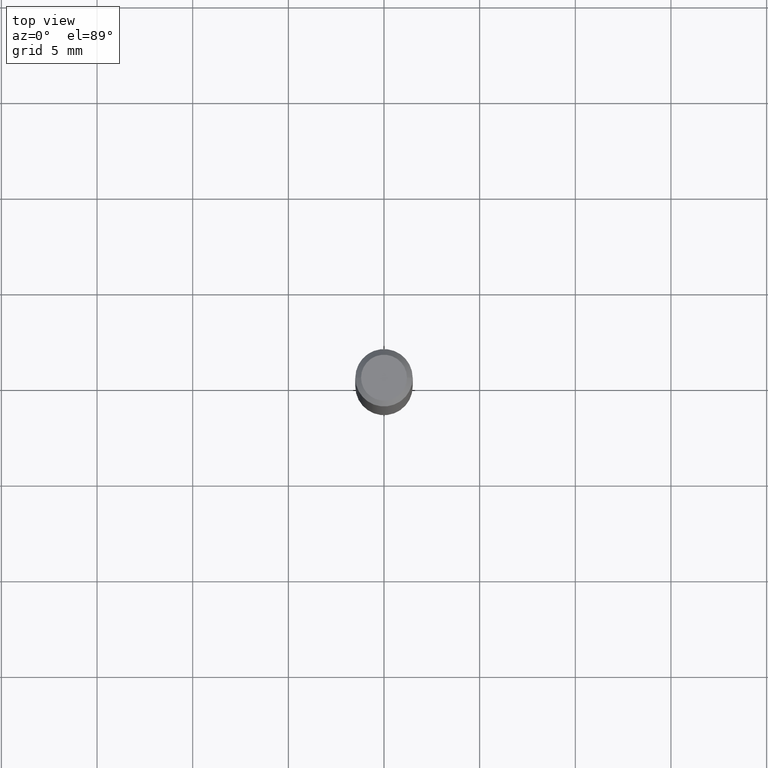
[diagram: clean part render]
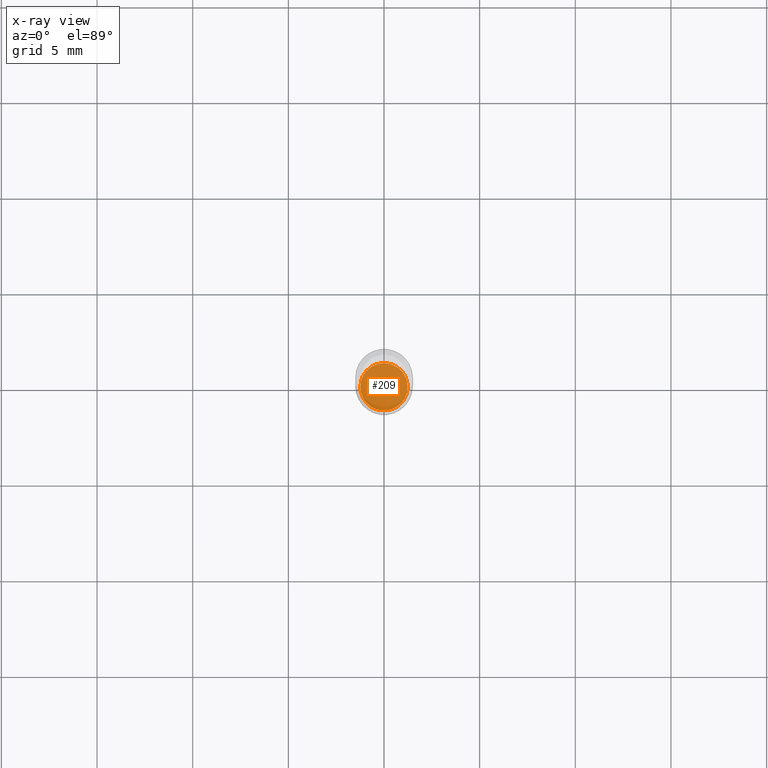
[diagram: x-ray — body ghosted, one internal face saturated and labeled with its STEP entity id]
A machine part, top view, then the same camera in x-ray: the body is ghosted and one INTERNAL B-rep face — a face not visible from any outside direction — is saturated and labeled: STEP entity #209.
In plain terms, the highlighted planar face has unit normal (-0, 0, 1).
Its self-contained STEP definition (entity closure, byte-faithful):
#1 = CARTESIAN_POINT ( 'NONE',  ( 2.676565608369631794E-29, -3.821426325363822773E-15, -1.094499999999999806 ) ) ;
#4 = DIRECTION ( 'NONE',  ( 1.000000000000000000, -6.982962677686261189E-15, 0.000000000000000000 ) ) ;
#24 = CARTESIAN_POINT ( 'NONE',  ( 0.04870000000000000023, -4.161496607767143501E-15, -1.094499999999999806 ) ) ;
#46 = DIRECTION ( 'NONE',  ( -2.438088387897960049E-29, 3.491481338843145188E-15, 1.000000000000000000 ) ) ;
#69 = AXIS2_PLACEMENT_3D ( 'NONE', #1, #202, #4 ) ;
#70 = EDGE_LOOP ( 'NONE', ( #428, #331 ) ) ;
#80 = EDGE_CURVE ( 'NONE', #219, #484, #102, .T. ) ;
#102 = CIRCLE ( 'NONE', #69, 0.04870000000000000023 ) ;
#136 = DIRECTION ( 'NONE',  ( 1.000000000000000000, -6.982962677686265922E-15, 4.876176775795935793E-29 ) ) ;
#161 = EDGE_CURVE ( 'NONE', #484, #219, #253, .T. ) ;
#202 = DIRECTION ( 'NONE',  ( -2.445468806185136597E-29, 3.491481338843145583E-15, 1.000000000000000000 ) ) ;
#209 = ADVANCED_FACE ( 'NONE', ( #475 ), #320, .F. ) ;
#219 = VERTEX_POINT ( 'NONE', #24 ) ;
#253 = CIRCLE ( 'NONE', #481, 0.04870000000000000023 ) ;
#282 = CARTESIAN_POINT ( 'NONE',  ( 2.676565608369631794E-29, -3.821426325363822773E-15, -1.094499999999999806 ) ) ;
#320 = PLANE ( 'NONE',  #453 ) ;
#331 = ORIENTED_EDGE ( 'NONE', *, *, #161, .F. ) ;
#360 = DIRECTION ( 'NONE',  ( 1.000000000000000000, -6.982962677686261189E-15, 0.000000000000000000 ) ) ;
#428 = ORIENTED_EDGE ( 'NONE', *, *, #80, .F. ) ;
#435 = DIRECTION ( 'NONE',  ( -2.445468806185136597E-29, 3.491481338843145583E-15, 1.000000000000000000 ) ) ;
#445 = CARTESIAN_POINT ( 'NONE',  ( -0.04870000000000000023, -3.472742785874542632E-15, -1.094499999999999806 ) ) ;
#453 = AXIS2_PLACEMENT_3D ( 'NONE', #473, #46, #136 ) ;
#473 = CARTESIAN_POINT ( 'NONE',  ( 2.676565608369631794E-29, -3.821426325363822773E-15, -1.094499999999999806 ) ) ;
#475 = FACE_OUTER_BOUND ( 'NONE', #70, .T. ) ;
#481 = AXIS2_PLACEMENT_3D ( 'NONE', #282, #435, #360 ) ;
#484 = VERTEX_POINT ( 'NONE', #445 ) ;